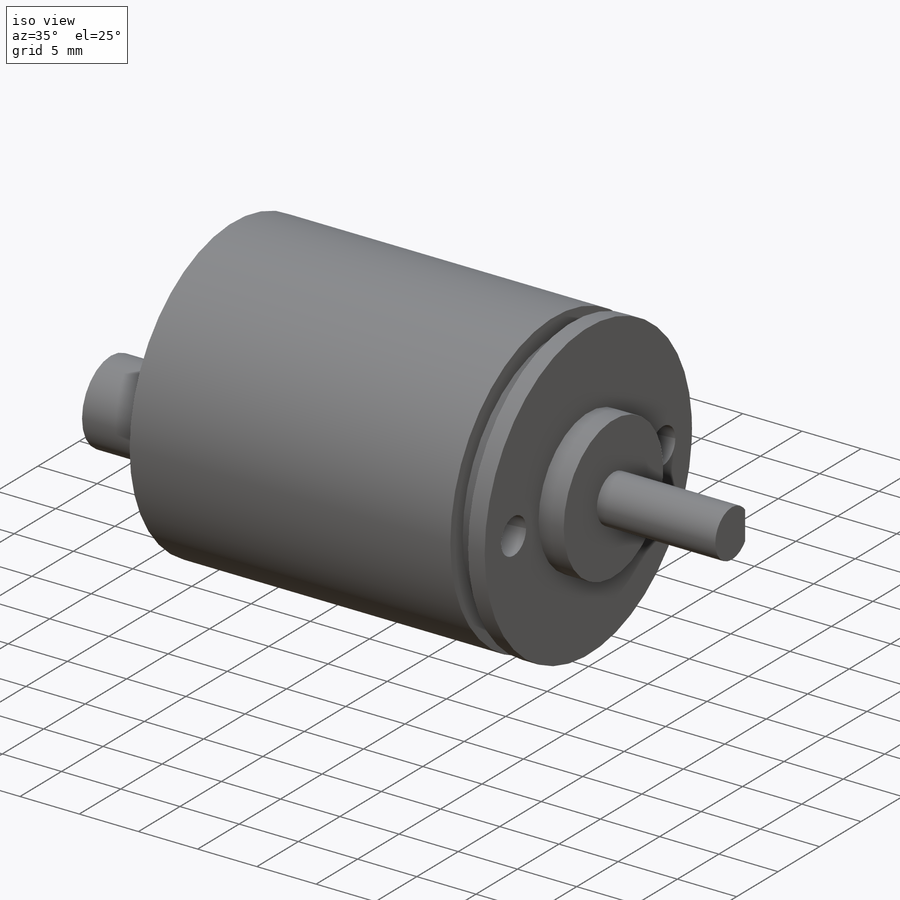
[diagram: iso view]
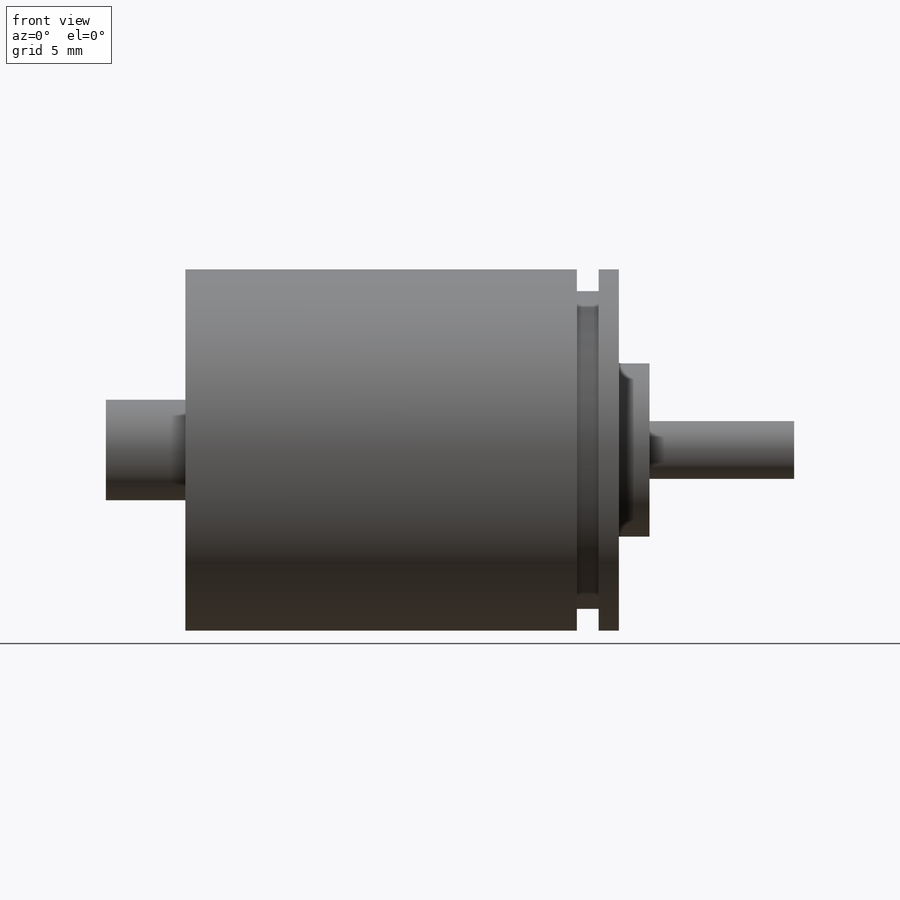
[diagram: front view]
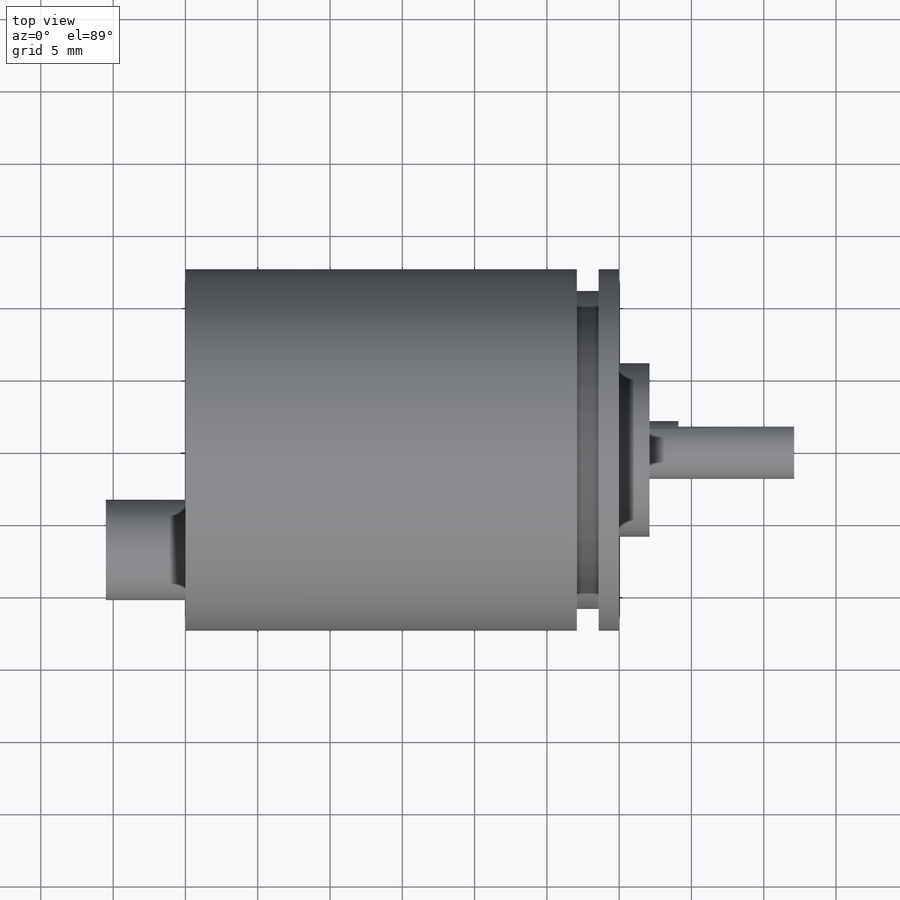
[diagram: top view]
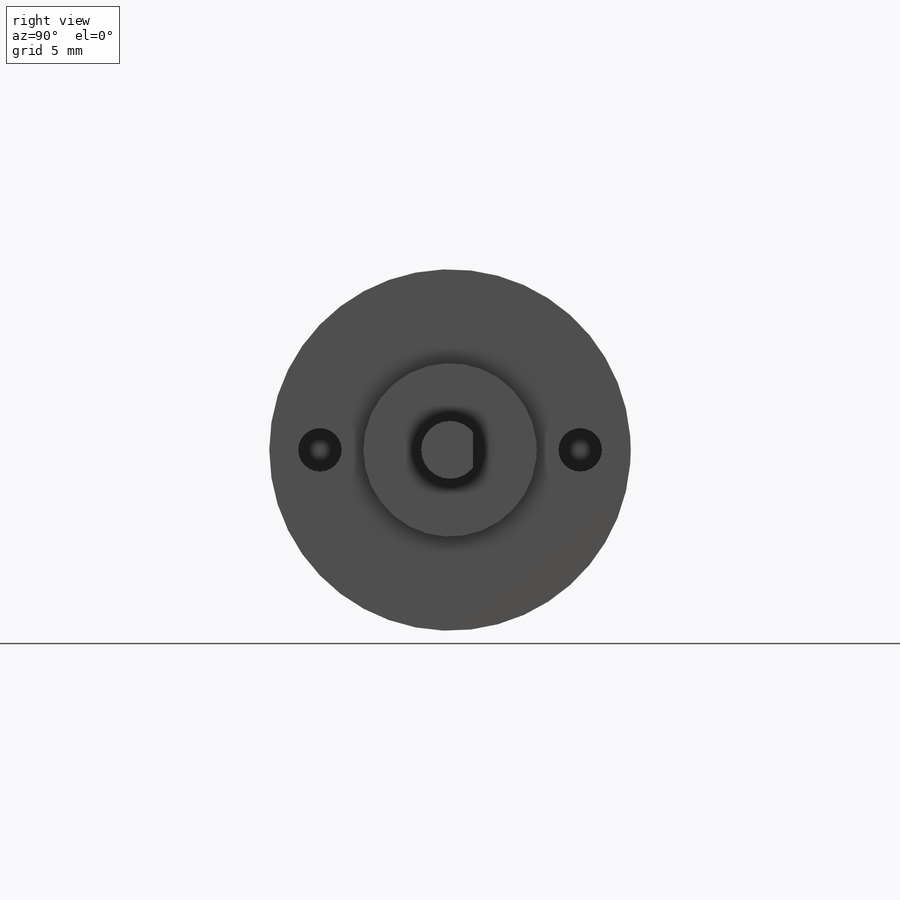
[diagram: right view]
SOLIDWORKS PART (.sldprt)
format: sldprt  version: not decoded by parser v0  size: 392,192 bytes
history: native  units: mm
features: sketch x8, extrude x6, cut_extrude x2, material x1 (+11 scaffold rows collapsed)
feature tree (28):
  scaffold x11  (default folders/planes/origin — collapsed)
  material  "Material <not specified>"
  sketch  "Sketch1"  dims[D1=25.0mm]
  extrude  "Boss-Extrude1"  Depth=27.0764mm
  sketch  "Sketch2"  dims[D1=22.0mm]
  extrude  "Boss-Extrude2"  Depth=1.5mm
  sketch  "Sketch3"  dims[D1=25.0mm]
  extrude  "Boss-Extrude3"  Depth=1.4mm
  sketch  "Sketch4"  dims[D1=12.0mm]
  extrude  "Boss-Extrude4"  Depth=2.12mm
  sketch  "Sketch5"  dims[D1=4.0mm]
  extrude  "Boss-Extrude5"  Depth=10mm
  sketch  "Sketch6"  dims[D1=1.6mm]
  cut_extrude  "Cut-Extrude1"  Depth=8mm
  sketch  "Sketch8"  dims[D1=3.0mm D2=9.0mm D3=2.0]
  cut_extrude  "Cut-Extrude2"  Depth=6.35mm
  sketch  "Sketch9"
  extrude  "Boss-Extrude6"  Depth=5.5mm
decode coverage: 15 of 16 modeling features carry decoded parameters
note: suppression state not decoded; provenance and decode notes live in map.json
